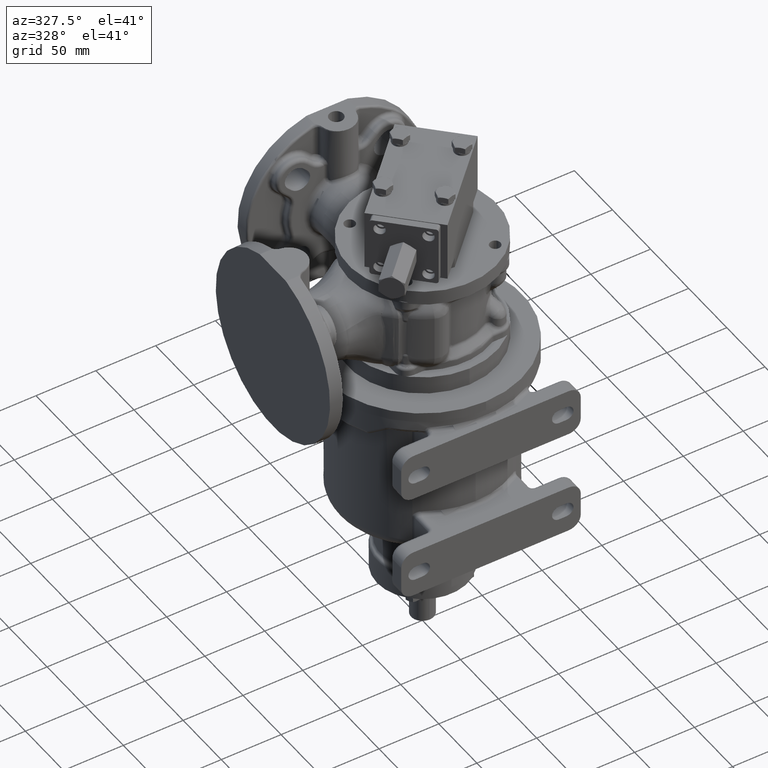
[diagram: clean part render]
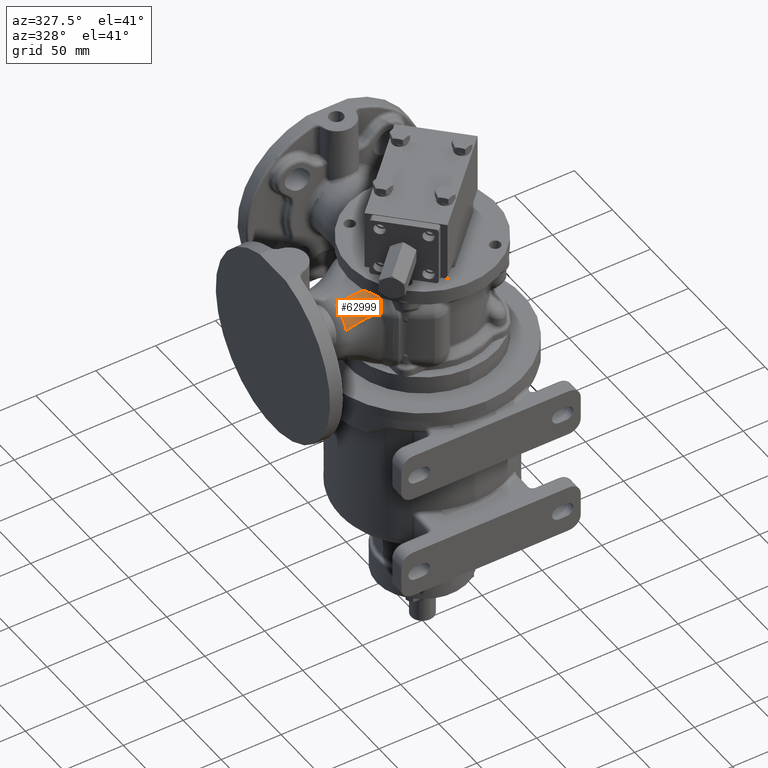
[diagram: same view with one face highlighted and labeled with its STEP entity id]
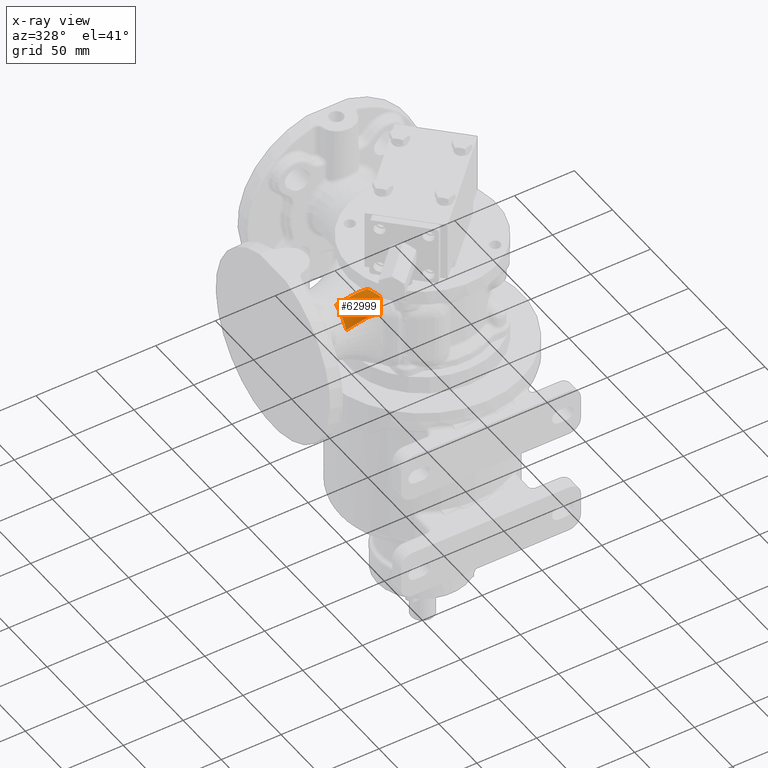
[diagram: x-ray of the same camera — body ghosted, the highlighted face saturated]
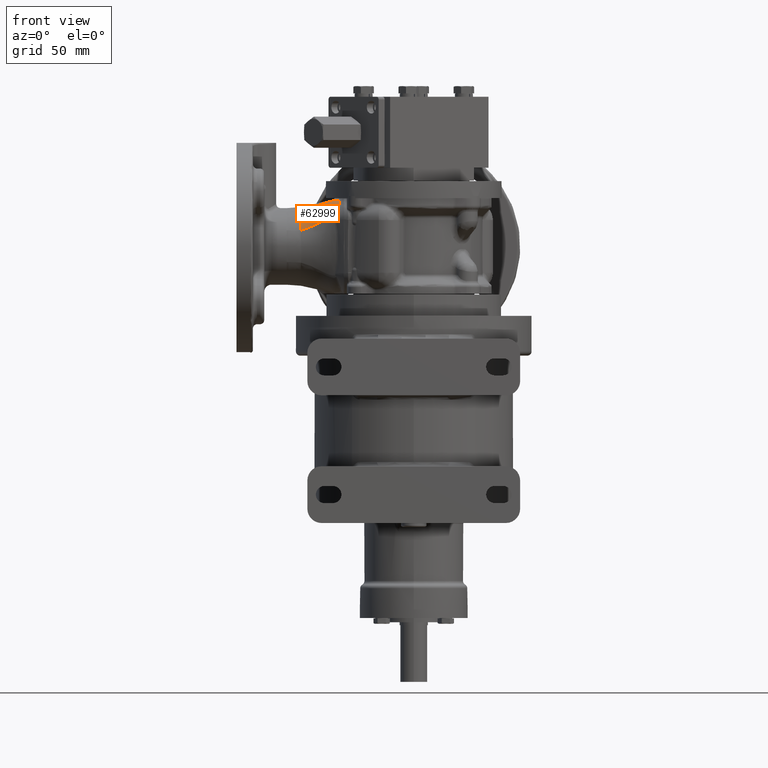
[diagram: same view with one face highlighted and labeled with its STEP entity id]
A machine part, auxiliary view. The second image highlights one B-rep face of the part: STEP entity #62999.
The next image is the same camera in x-ray: the body ghosted, the highlighted face saturated — about 0% of this face is hidden behind the body in this view.
A second angle (front view) of the same face is appended — the face is thin or edge-on in the first view.
In plain terms, the highlighted face is a freeform B-spline surface patch.
Its self-contained STEP definition (entity closure, byte-faithful):
#10596=CARTESIAN_POINT('',(-5.325746376097E1,-2.311639388283E1,
2.071038293684E2));
#10597=CARTESIAN_POINT('',(-5.323671732935E1,-2.319171577981E1,
2.070885164964E2));
#10598=CARTESIAN_POINT('',(-5.319086764615E1,-2.334669136166E1,
2.070571123599E2));
#10599=CARTESIAN_POINT('',(-5.310898388654E1,-2.359119325295E1,
2.070075403483E2));
#10600=CARTESIAN_POINT('',(-5.301229753365E1,-2.385045027753E1,
2.069547066238E2));
#10601=CARTESIAN_POINT('',(-5.289912692468E1,-2.412664268321E1,
2.068977688802E2));
#10602=CARTESIAN_POINT('',(-5.276950150429E1,-2.441697456669E1,
2.068369437120E2));
#10603=CARTESIAN_POINT('',(-5.262412172394E1,-2.471860254568E1,
2.067723938512E2));
#10604=CARTESIAN_POINT('',(-5.246192685157E1,-2.503253316358E1,
2.067034634912E2));
#10605=CARTESIAN_POINT('',(-5.234178161131E1,-2.525038696088E1,
2.066542182453E2));
#10606=CARTESIAN_POINT('',(-5.227863097915E1,-2.536139341759E1,
2.066286889616E2));
#10608=CARTESIAN_POINT('',(-5.227863097915E1,-2.536139341759E1,
2.066286889616E2));
#10609=CARTESIAN_POINT('',(-5.228671840444E1,-2.550823836139E1,
2.065632108250E2));
#10610=CARTESIAN_POINT('',(-5.230443135750E1,-2.579824682163E1,
2.064280883458E2));
#10611=CARTESIAN_POINT('',(-5.233556897885E1,-2.622236310336E1,
2.062130905603E2));
#10612=CARTESIAN_POINT('',(-5.237106275638E1,-2.663377025296E1,
2.059870294283E2));
#10613=CARTESIAN_POINT('',(-5.241077396895E1,-2.703127532213E1,
2.057510169872E2));
#10614=CARTESIAN_POINT('',(-5.245462575864E1,-2.741369520860E1,
2.055062659052E2));
#10615=CARTESIAN_POINT('',(-5.250254063517E1,-2.778034360365E1,
2.052538353800E2));
#10616=CARTESIAN_POINT('',(-5.255463999138E1,-2.813171628284E1,
2.049939683633E2));
#10617=CARTESIAN_POINT('',(-5.259207796720E1,-2.835635340831E1,
2.048157676669E2));
#10618=CARTESIAN_POINT('',(-5.261150958877E1,-2.846618169592E1,
2.047255494246E2));
#10620=CARTESIAN_POINT('',(-4.702987258342E1,-2.023014642431E1,
1.935000000053E2));
#10621=DIRECTION('',(-8.278072621943E-1,5.610125993758E-1,-1.176310901635E-10));
#10622=DIRECTION('',(-5.503504340218E-1,-8.120746067362E-1,1.940341023279E-1));
#10623=AXIS2_PLACEMENT_3D('',#10620,#10621,#10622);
#10625=CARTESIAN_POINT('',(-5.528512010576E1,-3.241125226309E1,
1.964105226419E2));
#10626=CARTESIAN_POINT('',(-5.533929093630E1,-3.241053764516E1,
1.962598952323E2));
#10627=CARTESIAN_POINT('',(-5.544045267951E1,-3.240511343396E1,
1.959712625841E2));
#10628=CARTESIAN_POINT('',(-5.557003396006E1,-3.239061374970E1,
1.955732164248E2));
#10629=CARTESIAN_POINT('',(-5.563939186942E1,-3.237993440718E1,
1.953359935978E2));
#10630=CARTESIAN_POINT('',(-5.567055330982E1,-3.237456759187E1,
1.952241277737E2));
#10632=CARTESIAN_POINT('',(-7.949997278968E1,-2.479075769170E1,
1.864709864998E2));
#10633=CARTESIAN_POINT('',(-7.852262391720E1,-2.482885510638E1,
1.866872462180E2));
#10634=CARTESIAN_POINT('',(-7.687461144027E1,-2.491996691298E1,
1.871423058262E2));
#10635=CARTESIAN_POINT('',(-7.456648886417E1,-2.513613999794E1,
1.879593272335E2));
#10636=CARTESIAN_POINT('',(-7.258591740266E1,-2.539534731689E1,
1.887692498489E2));
#10637=CARTESIAN_POINT('',(-7.063069557405E1,-2.573594984774E1,
1.896586290859E2));
#10638=CARTESIAN_POINT('',(-6.871032233807E1,-2.616545890240E1,
1.905997591032E2));
#10639=CARTESIAN_POINT('',(-6.683338985571E1,-2.668874439856E1,
1.915605636133E2));
#10640=CARTESIAN_POINT('',(-6.500728522972E1,-2.730701547441E1,
1.925041069893E2));
#10641=CARTESIAN_POINT('',(-6.323807332960E1,-2.801753015152E1,
1.933890741294E2));
#10642=CARTESIAN_POINT('',(-6.153047949437E1,-2.881343586660E1,
1.941702883173E2));
#10643=CARTESIAN_POINT('',(-5.988817860924E1,-2.968344642091E1,
1.947982182849E2));
#10644=CARTESIAN_POINT('',(-5.857646880452E1,-3.045713780216E1,
1.951488758791E2));
#10645=CARTESIAN_POINT('',(-5.756243939831E1,-3.109636320158E1,
1.952991295383E2));
#10646=CARTESIAN_POINT('',(-5.681985727818E1,-3.158364853892E1,
1.953404182441E2));
#10647=CARTESIAN_POINT('',(-5.621627401274E1,-3.199402115722E1,
1.953093385820E2));
#10648=CARTESIAN_POINT('',(-5.583673654722E1,-3.225798608284E1,
1.952547310223E2));
#10649=CARTESIAN_POINT('',(-5.569509984297E1,-3.235734816987E1,
1.952287808918E2));
#10650=CARTESIAN_POINT('',(-5.567092861240E1,-3.237432995848E1,
1.952241878151E2));
#10652=CARTESIAN_POINT('',(-7.949997284258E1,-1.114833119102E1,
2.004430607438E2));
#10653=CARTESIAN_POINT('',(-7.869317448523E1,-1.120032587164E1,
2.006017363517E2));
#10654=CARTESIAN_POINT('',(-7.708726299053E1,-1.131499955701E1,
2.009550725992E2));
#10655=CARTESIAN_POINT('',(-7.469259772071E1,-1.152614393942E1,
2.015813636338E2));
#10656=CARTESIAN_POINT('',(-7.231172212359E1,-1.178355701838E1,
2.022869941053E2));
#10657=CARTESIAN_POINT('',(-6.915329276429E1,-1.219858177944E1,
2.033058818026E2));
#10658=CARTESIAN_POINT('',(-6.603178148987E1,-1.273357814860E1,
2.043883114008E2));
#10659=CARTESIAN_POINT('',(-6.293561556984E1,-1.342372691620E1,
2.054321665853E2));
#10660=CARTESIAN_POINT('',(-6.062408428996E1,-1.402952644889E1,
2.061705080164E2));
#10661=CARTESIAN_POINT('',(-5.832189409772E1,-1.473471417328E1,
2.068404608817E2));
#10662=CARTESIAN_POINT('',(-5.678866874628E1,-1.528079280085E1,
2.072281704934E2));
#10663=CARTESIAN_POINT('',(-5.602162958413E1,-1.557565011352E1,
2.074042663383E2));
#10664=CARTESIAN_POINT('',(-5.601698563572E1,-1.557743609079E1,
2.074053318362E2));
#10666=CARTESIAN_POINT('',(-5.601685616090E1,-1.557748564790E1,
2.074053622921E2));
#10667=CARTESIAN_POINT('',(-5.594133770642E1,-1.581648060315E1,
2.074061113070E2));
#10668=CARTESIAN_POINT('',(-5.579278150506E1,-1.627837355350E1,
2.074075061531E2));
#10669=CARTESIAN_POINT('',(-5.557853201506E1,-1.691071096902E1,
2.074111220063E2));
#10670=CARTESIAN_POINT('',(-5.536010165405E1,-1.752086557285E1,
2.074164818251E2));
#10671=CARTESIAN_POINT('',(-5.513019194175E1,-1.812883753693E1,
2.074229122501E2));
#10672=CARTESIAN_POINT('',(-5.487016389472E1,-1.878468990381E1,
2.074290170508E2));
#10673=CARTESIAN_POINT('',(-5.456794749340E1,-1.952019209083E1,
2.074298647770E2));
#10674=CARTESIAN_POINT('',(-5.427892315292E1,-2.022073200290E1,
2.074175714069E2));
#10675=CARTESIAN_POINT('',(-5.403066333373E1,-2.083973042623E1,
2.073907916222E2));
#10676=CARTESIAN_POINT('',(-5.382359559783E1,-2.138089117418E1,
2.073520603971E2));
#10677=CARTESIAN_POINT('',(-5.364830603384E1,-2.186656452862E1,
2.073031988890E2));
#10678=CARTESIAN_POINT('',(-5.349837386129E1,-2.231092549994E1,
2.072454356147E2));
#10679=CARTESIAN_POINT('',(-5.336905628743E1,-2.272373329261E1,
2.071797524153E2));
#10680=CARTESIAN_POINT('',(-5.329287609804E1,-2.298795081177E1,
2.071299304661E2));
#10681=CARTESIAN_POINT('',(-5.325746376097E1,-2.311639388283E1,
2.071038293684E2));
#10958=CARTESIAN_POINT('',(-5.567055330982E1,-3.237456759187E1,
1.952241277737E2));
#11619=CARTESIAN_POINT('',(-7.949997280584E1,-1.114833972591E1,
2.004430558045E2));
#11638=CARTESIAN_POINT('',(-7.949997280584E1,-1.114833972591E1,
2.004430558045E2));
#11639=CARTESIAN_POINT('',(-7.949997280584E1,-1.133859897928E1,
2.003582662446E2));
#11640=CARTESIAN_POINT('',(-7.949997266651E1,-1.171714076899E1,
2.001843186825E2));
#11641=CARTESIAN_POINT('',(-7.949997273541E1,-1.246606357894E1,
1.998190168962E2));
#11642=CARTESIAN_POINT('',(-7.949997270254E1,-1.338624862841E1,
1.993298959066E2));
#11643=CARTESIAN_POINT('',(-7.949997271337E1,-1.446161941657E1,
1.986919044425E2));
#11644=CARTESIAN_POINT('',(-7.949997270897E1,-1.585343818269E1,
1.977747228941E2));
#11645=CARTESIAN_POINT('',(-7.949997270925E1,-1.750900044375E1,
1.965064640547E2));
#11646=CARTESIAN_POINT('',(-7.949997270787E1,-1.933915825331E1,
1.947989065786E2));
#11647=CARTESIAN_POINT('',(-7.949997270846E1,-2.099188413605E1,
1.929190737688E2));
#11648=CARTESIAN_POINT('',(-7.949997270717E1,-2.245501388453E1,
1.908888965135E2));
#11649=CARTESIAN_POINT('',(-7.949997271369E1,-2.351526261691E1,
1.890935227510E2));
#11650=CARTESIAN_POINT('',(-7.949997270091E1,-2.427297650339E1,
1.876085158625E2));
#11651=CARTESIAN_POINT('',(-7.949997272594E1,-2.462288324583E1,
1.868522530985E2));
#11652=CARTESIAN_POINT('',(-7.949997272594E1,-2.479072197012E1,
1.864709638049E2));
#14982=CARTESIAN_POINT('',(-5.261150958877E1,-2.846618169592E1,
2.047255494246E2));
#33277=VERTEX_POINT('',#10958);
#33279=VERTEX_POINT('',#10625);
#33281=VERTEX_POINT('',#14982);
#33349=CARTESIAN_POINT('',(-5.227863069172E1,-2.536139209833E1,
2.066286893114E2));
#33350=VERTEX_POINT('',#33349);
#33351=VERTEX_POINT('',#10596);
#33353=VERTEX_POINT('',#10666);
#33972=VERTEX_POINT('',#11619);
#33977=VERTEX_POINT('',#11652);
#62662=CARTESIAN_POINT('',(-8.450000019261E1,-1.070395705042E1,
1.997876059049E2));
#62663=CARTESIAN_POINT('',(-8.400044793749E1,-1.072565441371E1,
1.998362668725E2));
#62664=CARTESIAN_POINT('',(-8.300312267817E1,-1.077091795108E1,
1.999458627726E2));
#62665=CARTESIAN_POINT('',(-8.101558721623E1,-1.086891408581E1,
2.002141259495E2));
#62666=CARTESIAN_POINT('',(-7.806103917282E1,-1.104659686281E1,
2.007588509353E2));
#62667=CARTESIAN_POINT('',(-7.418033139444E1,-1.136455308867E1,
2.017398662452E2));
#62668=CARTESIAN_POINT('',(-6.989067413268E1,-1.186563430870E1,
2.030915067409E2));
#62669=CARTESIAN_POINT('',(-6.566789038255E1,-1.258101523962E1,
2.045595371411E2));
#62670=CARTESIAN_POINT('',(-6.194792343141E1,-1.343229514559E1,
2.058097328904E2));
#62671=CARTESIAN_POINT('',(-5.871080877666E1,-1.437726952037E1,
2.067740107679E2));
#62672=CARTESIAN_POINT('',(-5.594840372207E1,-1.535466423813E1,
2.074648651194E2));
#62673=CARTESIAN_POINT('',(-5.388560566015E1,-1.620010591439E1,
2.078828708551E2));
#62674=CARTESIAN_POINT('',(-5.206233085283E1,-1.704916752478E1,
2.081690971493E2));
#62675=CARTESIAN_POINT('',(-5.047760433088E1,-1.787147232819E1,
2.083461474752E2));
#62676=CARTESIAN_POINT('',(-4.924106820822E1,-1.857247385257E1,
2.084410854549E2));
#62677=CARTESIAN_POINT('',(-4.828754769852E1,-1.914734473797E1,
2.084820957586E2));
#62678=CARTESIAN_POINT('',(-4.756235490982E1,-1.961067862996E1,
2.085027003977E2));
#62679=CARTESIAN_POINT('',(-4.706176481448E1,-1.994360726490E1,
2.084986891650E2));
#62680=CARTESIAN_POINT('',(-4.678289713522E1,-2.013320333576E1,
2.084982012463E2));
#62681=CARTESIAN_POINT('',(-4.661445400127E1,-2.024923218109E1,
2.084968190952E2));
#62682=CARTESIAN_POINT('',(-8.450000004062E1,-1.085536451476E1,
1.997222222676E2));
#62683=CARTESIAN_POINT('',(-8.400163226807E1,-1.087659292974E1,
1.997703017778E2));
#62684=CARTESIAN_POINT('',(-8.300659871007E1,-1.092097250046E1,
1.998789379565E2));
#62685=CARTESIAN_POINT('',(-8.102334016550E1,-1.101742668826E1,
2.001461446068E2));
#62686=CARTESIAN_POINT('',(-7.807476171755E1,-1.119397925623E1,
2.006916706132E2));
#62687=CARTESIAN_POINT('',(-7.420173689981E1,-1.151207158583E1,
2.016775471866E2));
#62688=CARTESIAN_POINT('',(-6.992100590816E1,-1.201422050260E1,
2.030365793246E2));
#62689=CARTESIAN_POINT('',(-6.570714700568E1,-1.273091905841E1,
2.045123507900E2));
#62690=CARTESIAN_POINT('',(-6.199588678251E1,-1.358386994093E1,
2.057688791954E2));
#62691=CARTESIAN_POINT('',(-5.876773080686E1,-1.453039780502E1,
2.067396976738E2));
#62692=CARTESIAN_POINT('',(-5.601425960321E1,-1.550881831592E1,
2.074358445172E2));
#62693=CARTESIAN_POINT('',(-5.395893446205E1,-1.635460328394E1,
2.078599829593E2));
#62694=CARTESIAN_POINT('',(-5.214278391135E1,-1.720341793304E1,
2.081496432217E2));
#62695=CARTESIAN_POINT('',(-5.056448364222E1,-1.802495916323E1,
2.083343265127E2));
#62696=CARTESIAN_POINT('',(-4.933301583642E1,-1.872495800303E1,
2.084302655714E2));
#62697=CARTESIAN_POINT('',(-4.838337205052E1,-1.929879633896E1,
2.084807354133E2));
#62698=CARTESIAN_POINT('',(-4.766108667446E1,-1.976117060872E1,
2.084965329849E2));
#62699=CARTESIAN_POINT('',(-4.716247822514E1,-2.009335224966E1,
2.085021557092E2));
#62700=CARTESIAN_POINT('',(-4.688470165880E1,-2.028250865724E1,
2.085012426084E2));
#62701=CARTESIAN_POINT('',(-4.671691399478E1,-2.039826226606E1,
2.084996495338E2));
#62702=CARTESIAN_POINT('',(-8.449999973274E1,-1.112062144184E1,
1.996052632227E2));
#62703=CARTESIAN_POINT('',(-8.400372095955E1,-1.114103852169E1,
1.996523389942E2));
#62704=CARTESIAN_POINT('',(-8.301274618185E1,-1.118390589213E1,
1.997593270173E2));
#62705=CARTESIAN_POINT('',(-8.103713009402E1,-1.127777599794E1,
2.000246133672E2));
#62706=CARTESIAN_POINT('',(-7.809911436466E1,-1.145226912917E1,
2.005715271159E2));
#62707=CARTESIAN_POINT('',(-7.423963375669E1,-1.177050209940E1,
2.015654259049E2));
#62708=CARTESIAN_POINT('',(-6.997443881696E1,-1.227444079828E1,
2.029374485393E2));
#62709=CARTESIAN_POINT('',(-6.577626200871E1,-1.299361152263E1,
2.044265462494E2));
#62710=CARTESIAN_POINT('',(-6.208036452509E1,-1.384963638942E1,
2.056950076455E2));
#62711=CARTESIAN_POINT('',(-5.886799890190E1,-1.479900747413E1,
2.066770119871E2));
#62712=CARTESIAN_POINT('',(-5.613021411917E1,-1.577931125491E1,
2.073838159657E2));
#62713=CARTESIAN_POINT('',(-5.408797934606E1,-1.662577242726E1,
2.078171584436E2));
#62714=CARTESIAN_POINT('',(-5.228427870763E1,-1.747422200096E1,
2.081159675808E2));
#62715=CARTESIAN_POINT('',(-5.071720806899E1,-1.829449873729E1,
2.083096183106E2));
#62716=CARTESIAN_POINT('',(-4.949459975651E1,-1.899279016671E1,
2.084137565511E2));
#62717=CARTESIAN_POINT('',(-4.855177211996E1,-1.956489434124E1,
2.084691989153E2));
#62718=CARTESIAN_POINT('',(-4.783459723578E1,-2.002561590446E1,
2.084924999520E2));
#62719=CARTESIAN_POINT('',(-4.733945874126E1,-2.035649460008E1,
2.085016664771E2));
#62720=CARTESIAN_POINT('',(-4.706359664895E1,-2.054487666195E1,
2.085015831896E2));
#62721=CARTESIAN_POINT('',(-4.689695906303E1,-2.066014443235E1,
2.085006156159E2));
#62722=CARTESIAN_POINT('',(-8.449999923473E1,-1.161162250254E1,
1.993808483285E2));
#62723=CARTESIAN_POINT('',(-8.400763313076E1,-1.163057266014E1,
1.994261144284E2));
#62724=CARTESIAN_POINT('',(-8.302432747171E1,-1.167077295461E1,
1.995300912064E2));
#62725=CARTESIAN_POINT('',(-8.106339392833E1,-1.176030824447E1,
1.997918199743E2));
#62726=CARTESIAN_POINT('',(-7.814521271021E1,-1.193061640286E1,
2.003408390289E2));
#62727=CARTESIAN_POINT('',(-7.431111749507E1,-1.224883520143E1,
2.013485583929E2));
#62728=CARTESIAN_POINT('',(-7.007429194106E1,-1.275577069665E1,
2.027438914606E2));
#62729=CARTESIAN_POINT('',(-6.590531528486E1,-1.348009562798E1,
2.042580405995E2));
#62730=CARTESIAN_POINT('',(-6.223821427287E1,-1.434228664443E1,
2.055499037713E2));
#62731=CARTESIAN_POINT('',(-5.905539900158E1,-1.529732404939E1,
2.065537180851E2));
#62732=CARTESIAN_POINT('',(-5.634677170007E1,-1.628139843197E1,
2.072818515135E2));
#62733=CARTESIAN_POINT('',(-5.432875740592E1,-1.712934806956E1,
2.077325847525E2));
#62734=CARTESIAN_POINT('',(-5.254801936686E1,-1.797737317679E1,
2.080496736167E2));
#62735=CARTESIAN_POINT('',(-5.100158805339E1,-1.879549435539E1,
2.082598302789E2));
#62736=CARTESIAN_POINT('',(-4.979533831688E1,-1.949082914055E1,
2.083802265915E2));
#62737=CARTESIAN_POINT('',(-4.886521095896E1,-2.005996069064E1,
2.084495538593E2));
#62738=CARTESIAN_POINT('',(-4.815755129293E1,-2.051775687317E1,
2.084829691250E2));
#62739=CARTESIAN_POINT('',(-4.766885593267E1,-2.084625113192E1,
2.084875946952E2));
#62740=CARTESIAN_POINT('',(-4.739654169245E1,-2.103318476162E1,
2.084846127415E2));
#62741=CARTESIAN_POINT('',(-4.723203265596E1,-2.114753507732E1,
2.084806250912E2));
#62742=CARTESIAN_POINT('',(-8.449999919907E1,-1.232170758343E1,
1.990345972488E2));
#62743=CARTESIAN_POINT('',(-8.401341415483E1,-1.233863186418E1,
1.990773727272E2));
#62744=CARTESIAN_POINT('',(-8.304154225192E1,-1.237521087468E1,
1.991771559012E2));
#62745=CARTESIAN_POINT('',(-8.110296267854E1,-1.245923934373E1,
1.994336633694E2));
#62746=CARTESIAN_POINT('',(-7.821478706980E1,-1.262339837881E1,
1.999844166150E2));
#62747=CARTESIAN_POINT('',(-7.441787742904E1,-1.294034760184E1,
2.010095445372E2));
#62748=CARTESIAN_POINT('',(-7.022146360624E1,-1.345122206857E1,
2.024363053647E2));
#62749=CARTESIAN_POINT('',(-6.609497263185E1,-1.418421879714E1,
2.039881620038E2));
#62750=CARTESIAN_POINT('',(-6.247055587668E1,-1.505674791940E1,
2.053166397023E2));
#62751=CARTESIAN_POINT('',(-5.933126154683E1,-1.602100484331E1,
2.063558817971E2));
#62752=CARTESIAN_POINT('',(-5.666513500108E1,-1.701136324047E1,
2.071175894684E2));
#62753=CARTESIAN_POINT('',(-5.468209936991E1,-1.786210729007E1,
2.075962448787E2));
#62754=CARTESIAN_POINT('',(-5.293427690912E1,-1.871012103088E1,
2.079398144234E2));
#62755=CARTESIAN_POINT('',(-5.141749183949E1,-1.952580610371E1,
2.081750561923E2));
#62756=CARTESIAN_POINT('',(-5.023494252279E1,-2.021754810451E1,
2.083113543780E2));
#62757=CARTESIAN_POINT('',(-4.932317793480E1,-2.078276941058E1,
2.083848702776E2));
#62758=CARTESIAN_POINT('',(-4.862931805221E1,-2.123651416084E1,
2.084118362813E2));
#62759=CARTESIAN_POINT('',(-4.814997769274E1,-2.156157741572E1,
2.084193063248E2));
#62760=CARTESIAN_POINT('',(-4.788281570141E1,-2.174639489412E1,
2.084199947735E2));
#62761=CARTESIAN_POINT('',(-4.772139910013E1,-2.185939408266E1,
2.084192067458E2));
#62762=CARTESIAN_POINT('',(-8.450000026583E1,-1.323961787505E1,
1.985447197123E2));
#62763=CARTESIAN_POINT('',(-8.402109694087E1,-1.325408616711E1,
1.985844925657E2));
#62764=CARTESIAN_POINT('',(-8.306445378227E1,-1.328622648928E1,
1.986791272696E2));
#62765=CARTESIAN_POINT('',(-8.115582384840E1,-1.336333944002E1,
1.989287383130E2));
#62766=CARTESIAN_POINT('',(-7.830927766142E1,-1.352073384069E1,
1.994794093774E2));
#62767=CARTESIAN_POINT('',(-7.456144727033E1,-1.383428626348E1,
2.005223255187E2));
#62768=CARTESIAN_POINT('',(-7.041711413382E1,-1.434997636786E1,
2.019860451277E2));
#62769=CARTESIAN_POINT('',(-6.634597552941E1,-1.509589583145E1,
2.035881070347E2));
#62770=CARTESIAN_POINT('',(-6.277832213220E1,-1.598419017964E1,
2.049686669833E2));
#62771=CARTESIAN_POINT('',(-5.969642933798E1,-1.696225496047E1,
2.060585558164E2));
#62772=CARTESIAN_POINT('',(-5.708563024796E1,-1.796228401E1,2.068668122928E2));
#62773=CARTESIAN_POINT('',(-5.514755936086E1,-1.881771723666E1,
2.073807679841E2));
#62774=CARTESIAN_POINT('',(-5.344184424992E1,-1.966674202197E1,
2.077538541037E2));
#62775=CARTESIAN_POINT('',(-5.196313786077E1,-2.048031605769E1,
2.080065092581E2));
#62776=CARTESIAN_POINT('',(-5.081090270048E1,-2.116787902398E1,
2.081471366236E2));
#62777=CARTESIAN_POINT('',(-4.992259709975E1,-2.172812823007E1,
2.082204516913E2));
#62778=CARTESIAN_POINT('',(-4.924645520527E1,-2.217656238031E1,
2.082492935647E2));
#62779=CARTESIAN_POINT('',(-4.877923168840E1,-2.249713278752E1,
2.082532526510E2));
#62780=CARTESIAN_POINT('',(-4.851878203116E1,-2.267918269124E1,
2.082503280644E2));
#62781=CARTESIAN_POINT('',(-4.836140685780E1,-2.279041484936E1,
2.082466813104E2));
#62782=CARTESIAN_POINT('',(-8.450000069918E1,-1.442606175052E1,
1.978483572349E2));
#62783=CARTESIAN_POINT('',(-8.403126270231E1,-1.443753348601E1,
1.978845106059E2));
#62784=CARTESIAN_POINT('',(-8.309477269887E1,-1.446423366984E1,
1.979727803982E2));
#62785=CARTESIAN_POINT('',(-8.122573724844E1,-1.453265322145E1,
1.982131783417E2));
#62786=CARTESIAN_POINT('',(-7.843536185668E1,-1.468203933285E1,
1.987609065517E2));
#62787=CARTESIAN_POINT('',(-7.475335150605E1,-1.499111648666E1,
1.998208068375E2));
#62788=CARTESIAN_POINT('',(-7.067701837270E1,-1.551261697321E1,
2.013271845904E2));
#62789=CARTESIAN_POINT('',(-6.667837708485E1,-1.627716193896E1,
2.029942648578E2));
#62790=CARTESIAN_POINT('',(-6.318544413524E1,-1.718834436466E1,
2.044452838423E2));
#62791=CARTESIAN_POINT('',(-6.017864322766E1,-1.818665044820E1,
2.056026109464E2));
#62792=CARTESIAN_POINT('',(-5.763933316474E1,-1.920094794450E1,
2.064674897617E2));
#62793=CARTESIAN_POINT('',(-5.575880929476E1,-2.006347719427E1,
2.070188184225E2));
#62794=CARTESIAN_POINT('',(-5.410673902794E1,-2.091443526791E1,
2.074145068732E2));
#62795=CARTESIAN_POINT('',(-5.267624811065E1,-2.172515174174E1,
2.076747437488E2));
#62796=CARTESIAN_POINT('',(-5.156228265679E1,-2.240664421421E1,
2.078142227973E2));
#62797=CARTESIAN_POINT('',(-5.070366616504E1,-2.295976556397E1,
2.078837497636E2));
#62798=CARTESIAN_POINT('',(-5.005018186770E1,-2.340086821538E1,
2.079076781991E2));
#62799=CARTESIAN_POINT('',(-4.959863737510E1,-2.371543321897E1,
2.079115049166E2));
#62800=CARTESIAN_POINT('',(-4.934693599634E1,-2.389384344197E1,
2.079097359161E2));
#62801=CARTESIAN_POINT('',(-4.919484970983E1,-2.400276879432E1,
2.079072371642E2));
#62802=CARTESIAN_POINT('',(-8.449999942842E1,-1.588242880336E1,
1.968760506868E2));
#62803=CARTESIAN_POINT('',(-8.404404503451E1,-1.589048460927E1,
1.969081143350E2));
#62804=CARTESIAN_POINT('',(-8.313285271896E1,-1.591089167472E1,
1.969889927992E2));
#62805=CARTESIAN_POINT('',(-8.131333291148E1,-1.596888636929E1,
1.972177513418E2));
#62806=CARTESIAN_POINT('',(-7.859357079858E1,-1.610858760071E1,
1.977577258443E2));
#62807=CARTESIAN_POINT('',(-7.499553520297E1,-1.641262544041E1,
1.988290569428E2));
#62808=CARTESIAN_POINT('',(-7.100471796671E1,-1.694101963916E1,
2.003780586119E2));
#62809=CARTESIAN_POINT('',(-6.709638243360E1,-1.772999919158E1,
2.021196087864E2));
#62810=CARTESIAN_POINT('',(-6.369602535530E1,-1.867201072387E1,
2.036541074158E2));
#62811=CARTESIAN_POINT('',(-6.078138158760E1,-1.969785645217E1,
2.048863801508E2));
#62812=CARTESIAN_POINT('',(-5.832876551062E1,-2.073132829277E1,
2.058053743388E2));
#62813=CARTESIAN_POINT('',(-5.651740119876E1,-2.160301146112E1,
2.063845187301E2));
#62814=CARTESIAN_POINT('',(-5.492937842820E1,-2.245563476528E1,
2.067905770501E2));
#62815=CARTESIAN_POINT('',(-5.355633607670E1,-2.326134507415E1,
2.070498232972E2));
#62816=CARTESIAN_POINT('',(-5.248821114255E1,-2.393397232147E1,
2.071842968590E2));
#62817=CARTESIAN_POINT('',(-5.166549658138E1,-2.447731914533E1,
2.072490930517E2));
#62818=CARTESIAN_POINT('',(-5.103974556597E1,-2.490881438025E1,
2.072698694679E2));
#62819=CARTESIAN_POINT('',(-5.060756314112E1,-2.521567408576E1,
2.072690683342E2));
#62820=CARTESIAN_POINT('',(-5.036671695968E1,-2.538945327030E1,
2.072637986234E2));
#62821=CARTESIAN_POINT('',(-5.022121259010E1,-2.549545757103E1,
2.072588506983E2));
#62822=CARTESIAN_POINT('',(-8.449999924402E1,-1.746683262764E1,
1.956512320880E2));
#62823=CARTESIAN_POINT('',(-8.405816351806E1,-1.747149555495E1,
1.956791072045E2));
#62824=CARTESIAN_POINT('',(-8.317481648335E1,-1.748552670968E1,
1.957521705170E2));
#62825=CARTESIAN_POINT('',(-8.140942240396E1,-1.753241778803E1,
1.959675491838E2));
#62826=CARTESIAN_POINT('',(-7.876598319694E1,-1.766009408781E1,
1.964950102696E2));
#62827=CARTESIAN_POINT('',(-7.525984734650E1,-1.795722980592E1,
1.975674761885E2));
#62828=CARTESIAN_POINT('',(-7.136341589330E1,-1.849143837277E1,
1.991470843236E2));
#62829=CARTESIAN_POINT('',(-6.755331817992E1,-1.930582248706E1,
2.009530894064E2));
#62830=CARTESIAN_POINT('',(-6.425241585014E1,-2.028165216234E1,
2.025607866594E2));
#62831=CARTESIAN_POINT('',(-6.143589006458E1,-2.133792024406E1,
2.038528510408E2));
#62832=CARTESIAN_POINT('',(-5.907509601535E1,-2.239190375279E1,
2.048083574250E2));
#62833=CARTESIAN_POINT('',(-5.733684711927E1,-2.327240540123E1,
2.054018702497E2));
#62834=CARTESIAN_POINT('',(-5.581672817738E1,-2.412521663170E1,
2.058096821315E2));
#62835=CARTESIAN_POINT('',(-5.450510515010E1,-2.492381487246E1,
2.060635340929E2));
#62836=CARTESIAN_POINT('',(-5.348650158188E1,-2.558544410257E1,
2.061901223080E2));
#62837=CARTESIAN_POINT('',(-5.270285502457E1,-2.611715624419E1,
2.062470213501E2));
#62838=CARTESIAN_POINT('',(-5.210747142749E1,-2.653743464295E1,
2.062603338051E2));
#62839=CARTESIAN_POINT('',(-5.169657575820E1,-2.683538883862E1,
2.062557063743E2));
#62840=CARTESIAN_POINT('',(-5.146769009219E1,-2.700384230068E1,
2.062488386897E2));
#62841=CARTESIAN_POINT('',(-5.132944756389E1,-2.710649597916E1,
2.062431142209E2));
#62842=CARTESIAN_POINT('',(-8.450000042926E1,-1.913294990127E1,
1.941327912750E2));
#62843=CARTESIAN_POINT('',(-8.407290939788E1,-1.913445324017E1,
1.941562260334E2));
#62844=CARTESIAN_POINT('',(-8.321849900714E1,-1.914231740931E1,
1.942207679647E2));
#62845=CARTESIAN_POINT('',(-8.150875927305E1,-1.917745840499E1,
1.944205430825E2));
#62846=CARTESIAN_POINT('',(-7.894251343285E1,-1.929007769283E1,
1.949283627457E2));
#62847=CARTESIAN_POINT('',(-7.552814351698E1,-1.957314825614E1,
1.959868757749E2));
#62848=CARTESIAN_POINT('',(-7.172665359304E1,-2.010525564028E1,
1.975740634367E2));
#62849=CARTESIAN_POINT('',(-6.801549336385E1,-2.093879998266E1,
1.994166439819E2));
#62850=CARTESIAN_POINT('',(-6.481454233777E1,-2.194491636896E1,
2.010706555624E2));
#62851=CARTESIAN_POINT('',(-6.209692496736E1,-2.302936689715E1,
2.023998601165E2));
#62852=CARTESIAN_POINT('',(-5.982927422582E1,-2.410167953479E1,
2.033766968701E2));
#62853=CARTESIAN_POINT('',(-5.816578942498E1,-2.498888614811E1,
2.039768510900E2));
#62854=CARTESIAN_POINT('',(-5.671577899988E1,-2.583918776175E1,
2.043817846278E2));
#62855=CARTESIAN_POINT('',(-5.546811595674E1,-2.662777384183E1,
2.046266644747E2));
#62856=CARTESIAN_POINT('',(-5.450141606206E1,-2.727581516117E1,
2.047423501304E2));
#62857=CARTESIAN_POINT('',(-5.375891899189E1,-2.779360939381E1,
2.047888707675E2));
#62858=CARTESIAN_POINT('',(-5.319566829213E1,-2.820074206658E1,
2.047931780783E2));
#62859=CARTESIAN_POINT('',(-5.280736687429E1,-2.848834081213E1,
2.047804006862E2));
#62860=CARTESIAN_POINT('',(-5.259119866789E1,-2.865062122968E1,
2.047683035129E2));
#62861=CARTESIAN_POINT('',(-5.246068547996E1,-2.874939857545E1,
2.047591720383E2));
#62862=CARTESIAN_POINT('',(-8.449999981150E1,-2.081986863065E1,
1.922819490328E2));
#62863=CARTESIAN_POINT('',(-8.408712230528E1,-2.081879665288E1,
1.923003063753E2));
#62864=CARTESIAN_POINT('',(-8.326043842434E1,-2.082129603252E1,
1.923546895084E2));
#62865=CARTESIAN_POINT('',(-8.160336261393E1,-2.084489331264E1,
1.925341230129E2));
#62866=CARTESIAN_POINT('',(-7.910772627127E1,-2.093702463912E1,
1.930134315298E2));
#62867=CARTESIAN_POINT('',(-7.577468779530E1,-2.119264727431E1,
1.940388969143E2));
#62868=CARTESIAN_POINT('',(-7.205693773812E1,-2.170446329788E1,
1.956009870278E2));
#62869=CARTESIAN_POINT('',(-6.843449904154E1,-2.253889564729E1,
1.974399572156E2));
#62870=CARTESIAN_POINT('',(-6.532537414920E1,-2.356075620710E1,
1.991056023110E2));
#62871=CARTESIAN_POINT('',(-6.270064870448E1,-2.466253566894E1,
2.004493290046E2));
#62872=CARTESIAN_POINT('',(-6.052214535653E1,-2.574517670609E1,
2.014351802419E2));
#62873=CARTESIAN_POINT('',(-5.893121636388E1,-2.663348372691E1,
2.020367568985E2));
#62874=CARTESIAN_POINT('',(-5.755000548085E1,-2.747649784935E1,
2.024363129997E2));
#62875=CARTESIAN_POINT('',(-5.636571030972E1,-2.825030924365E1,
2.026692853965E2));
#62876=CARTESIAN_POINT('',(-5.545086214022E1,-2.888033196293E1,
2.027697392740E2));
#62877=CARTESIAN_POINT('',(-5.474968471287E1,-2.938052376973E1,
2.028009807025E2));
#62878=CARTESIAN_POINT('',(-5.421885839600E1,-2.977150480468E1,
2.027906913500E2));
#62879=CARTESIAN_POINT('',(-5.385343818227E1,-3.004661989832E1,
2.027672972020E2));
#62880=CARTESIAN_POINT('',(-5.365017334677E1,-3.020152839863E1,
2.027491696581E2));
#62881=CARTESIAN_POINT('',(-5.352751154178E1,-3.029569941017E1,
2.027363511692E2));
#62882=CARTESIAN_POINT('',(-8.450000008946E1,-2.235199509844E1,
1.902517364392E2));
#62883=CARTESIAN_POINT('',(-8.409875039890E1,-2.234951578929E1,
1.902644315682E2));
#62884=CARTESIAN_POINT('',(-8.329453227493E1,-2.234837969234E1,
1.903076410671E2));
#62885=CARTESIAN_POINT('',(-8.167920584547E1,-2.236134382759E1,
1.904653576336E2));
#62886=CARTESIAN_POINT('',(-7.923782278202E1,-2.243041182562E1,
1.909109550884E2));
#62887=CARTESIAN_POINT('',(-7.596452236139E1,-2.264717945687E1,
1.918905348044E2));
#62888=CARTESIAN_POINT('',(-7.230720034135E1,-2.311975343780E1,
1.934015920368E2));
#62889=CARTESIAN_POINT('',(-6.875003862997E1,-2.392959599254E1,
1.952004365697E2));
#62890=CARTESIAN_POINT('',(-6.571105070180E1,-2.494123034546E1,
1.968457838513E2));
#62891=CARTESIAN_POINT('',(-6.316006204269E1,-2.603843693088E1,
1.981824780556E2));
#62892=CARTESIAN_POINT('',(-6.105437778223E1,-2.711495269878E1,
1.991667193453E2));
#62893=CARTESIAN_POINT('',(-5.952406643111E1,-2.799413872274E1,
1.997661723512E2));
#62894=CARTESIAN_POINT('',(-5.820150129548E1,-2.882190542890E1,
2.001579990346E2));
#62895=CARTESIAN_POINT('',(-5.707207035538E1,-2.957516606826E1,
2.003768927986E2));
#62896=CARTESIAN_POINT('',(-5.620261824231E1,-3.018339306891E1,
2.004601201229E2));
#62897=CARTESIAN_POINT('',(-5.553790536897E1,-3.066306197066E1,
2.004738530289E2));
#62898=CARTESIAN_POINT('',(-5.503587853524E1,-3.103557742528E1,
2.004473229599E2));
#62899=CARTESIAN_POINT('',(-5.469085787403E1,-3.129647143059E1,
2.004105814633E2));
#62900=CARTESIAN_POINT('',(-5.449912186464E1,-3.144299079880E1,
2.003843079092E2));
#62901=CARTESIAN_POINT('',(-5.438348379408E1,-3.153192466171E1,
2.003663096582E2));
#62902=CARTESIAN_POINT('',(-8.449999997609E1,-2.342302958911E1,
1.885134401706E2));
#62903=CARTESIAN_POINT('',(-8.410536400052E1,-2.342064238101E1,
1.885211222247E2));
#62904=CARTESIAN_POINT('',(-8.331386123686E1,-2.341886723397E1,
1.885544422783E2));
#62905=CARTESIAN_POINT('',(-8.172196128990E1,-2.342741253035E1,
1.886928479100E2));
#62906=CARTESIAN_POINT('',(-7.930935491156E1,-2.347869405386E1,
1.891146006857E2));
#62907=CARTESIAN_POINT('',(-7.606781989642E1,-2.366395024513E1,
1.900565685157E2));
#62908=CARTESIAN_POINT('',(-7.244221804038E1,-2.409777103208E1,
1.915148199153E2));
#62909=CARTESIAN_POINT('',(-6.891711825309E1,-2.486666426482E1,
1.932658920515E2));
#62910=CARTESIAN_POINT('',(-6.591308117156E1,-2.584245195698E1,
1.948768720119E2));
#62911=CARTESIAN_POINT('',(-6.340030980466E1,-2.690806798698E1,
1.961919046878E2));
#62912=CARTESIAN_POINT('',(-6.133416450943E1,-2.795657864836E1,
1.971630925845E2));
#62913=CARTESIAN_POINT('',(-5.983796625188E1,-2.881309235235E1,
1.977556072716E2));
#62914=CARTESIAN_POINT('',(-5.854952943058E1,-2.961837132929E1,
1.981423314056E2));
#62915=CARTESIAN_POINT('',(-5.745319155415E1,-3.034749737165E1,
1.983523658745E2));
#62916=CARTESIAN_POINT('',(-5.661205777646E1,-3.093229972763E1,
1.984222235238E2));
#62917=CARTESIAN_POINT('',(-5.597058790344E1,-3.139116895810E1,
1.984213719274E2));
#62918=CARTESIAN_POINT('',(-5.548729106638E1,-3.174568132218E1,
1.983796814656E2));
#62919=CARTESIAN_POINT('',(-5.515572340957E1,-3.199310144371E1,
1.983308489792E2));
#62920=CARTESIAN_POINT('',(-5.497164437865E1,-3.213178733178E1,
1.982973522705E2));
#62921=CARTESIAN_POINT('',(-5.486069137398E1,-3.221586928521E1,
1.982748147495E2));
#62922=CARTESIAN_POINT('',(-8.450000000181E1,-2.413571824875E1,
1.871471608659E2));
#62923=CARTESIAN_POINT('',(-8.410863640609E1,-2.413424763457E1,
1.871507891437E2));
#62924=CARTESIAN_POINT('',(-8.332335831384E1,-2.413346822866E1,
1.871769861333E2));
#62925=CARTESIAN_POINT('',(-8.174254803998E1,-2.414037891265E1,
1.873053204858E2));
#62926=CARTESIAN_POINT('',(-7.934524367358E1,-2.418599473403E1,
1.877125957854E2));
#62927=CARTESIAN_POINT('',(-7.612316801578E1,-2.435884715540E1,
1.886236345975E2));
#62928=CARTESIAN_POINT('',(-7.251510747379E1,-2.476535836917E1,
1.900470928288E2));
#62929=CARTESIAN_POINT('',(-6.900480493703E1,-2.549301679613E1,
1.917635013570E2));
#62930=CARTESIAN_POINT('',(-6.601342439767E1,-2.642307759528E1,
1.933497108092E2));
#62931=CARTESIAN_POINT('',(-6.351435737132E1,-2.744408165104E1,
1.946446844857E2));
#62932=CARTESIAN_POINT('',(-6.146344045908E1,-2.845133988524E1,
1.955997202979E2));
#62933=CARTESIAN_POINT('',(-5.998174273312E1,-2.927544813078E1,
1.961794963842E2));
#62934=CARTESIAN_POINT('',(-5.870932080578E1,-3.005025450896E1,
1.965526692753E2));
#62935=CARTESIAN_POINT('',(-5.762966984484E1,-3.075255619356E1,
1.967511820187E2));
#62936=CARTESIAN_POINT('',(-5.680368671094E1,-3.131561638490E1,
1.968109223783E2));
#62937=CARTESIAN_POINT('',(-5.617528815954E1,-3.175621425628E1,
1.967993278533E2));
#62938=CARTESIAN_POINT('',(-5.570302791131E1,-3.209531849310E1,
1.967467253997E2));
#62939=CARTESIAN_POINT('',(-5.537963111224E1,-3.233117998774E1,
1.966884508636E2));
#62940=CARTESIAN_POINT('',(-5.520028149052E1,-3.246313196472E1,
1.966490677624E2));
#62941=CARTESIAN_POINT('',(-5.509224914966E1,-3.254304059820E1,
1.966227488051E2));
#62942=CARTESIAN_POINT('',(-8.449999999988E1,-2.457131422790E1,
1.862044733647E2));
#62943=CARTESIAN_POINT('',(-8.411002701983E1,-2.457088451499E1,
1.862053817380E2));
#62944=CARTESIAN_POINT('',(-8.332744741526E1,-2.457178061993E1,
1.862267019099E2));
#62945=CARTESIAN_POINT('',(-8.175176086278E1,-2.458062220563E1,
1.863473279981E2));
#62946=CARTESIAN_POINT('',(-7.936315095430E1,-2.463031973380E1,
1.867407180920E2));
#62947=CARTESIAN_POINT('',(-7.615119530352E1,-2.479876442307E1,
1.876361925924E2));
#62948=CARTESIAN_POINT('',(-7.255375266902E1,-2.519048943318E1,
1.890396831455E2));
#62949=CARTESIAN_POINT('',(-6.905015180930E1,-2.588492638424E1,
1.907371947080E2));
#62950=CARTESIAN_POINT('',(-6.606133624890E1,-2.677564668744E1,
1.923087279037E2));
#62951=CARTESIAN_POINT('',(-6.356340607231E1,-2.775634358084E1,
1.935925238791E2));
#62952=CARTESIAN_POINT('',(-6.151469708149E1,-2.872658693102E1,
1.945378675547E2));
#62953=CARTESIAN_POINT('',(-6.003643389833E1,-2.952177381565E1,
1.951097722937E2));
#62954=CARTESIAN_POINT('',(-5.876940884449E1,-3.026990764912E1,
1.954738651112E2));
#62955=CARTESIAN_POINT('',(-5.769684009057E1,-3.094751762776E1,
1.956607712416E2));
#62956=CARTESIAN_POINT('',(-5.687812084414E1,-3.149098756664E1,
1.957103739766E2));
#62957=CARTESIAN_POINT('',(-5.625632435652E1,-3.191663468267E1,
1.956910587459E2));
#62958=CARTESIAN_POINT('',(-5.578993059335E1,-3.224384475998E1,
1.956309834394E2));
#62959=CARTESIAN_POINT('',(-5.547104372325E1,-3.247105279872E1,
1.955663543094E2));
#62960=CARTESIAN_POINT('',(-5.529434934380E1,-3.259802842519E1,
1.955230310708E2));
#62961=CARTESIAN_POINT('',(-5.518797335514E1,-3.267487977711E1,
1.954941971509E2));
#62962=CARTESIAN_POINT('',(-8.450000000001E1,-2.478498684977E1,
1.857100265079E2));
#62963=CARTESIAN_POINT('',(-8.411052802685E1,-2.478521476337E1,
1.857095190627E2));
#62964=CARTESIAN_POINT('',(-8.332900261402E1,-2.478743333245E1,
1.857280743286E2));
#62965=CARTESIAN_POINT('',(-8.175562393981E1,-2.479891589017E1,
1.858434709554E2));
#62966=CARTESIAN_POINT('',(-7.937046270519E1,-2.485087097396E1,
1.862306078854E2));
#62967=CARTESIAN_POINT('',(-7.616332061160E1,-2.501958828902E1,
1.871182894293E2));
#62968=CARTESIAN_POINT('',(-7.257079600695E1,-2.540350115288E1,
1.885129656460E2));
#62969=CARTESIAN_POINT('',(-6.906993521520E1,-2.608001355042E1,
1.902014701086E2));
#62970=CARTESIAN_POINT('',(-6.608078189291E1,-2.694763250794E1,
1.917659938297E2));
#62971=CARTESIAN_POINT('',(-6.358129908168E1,-2.790486756993E1,
1.930444701968E2));
#62972=CARTESIAN_POINT('',(-6.153156974793E1,-2.885343485983E1,
1.939851776052E2));
#62973=CARTESIAN_POINT('',(-6.005339922919E1,-2.963168853168E1,
1.945529275521E2));
#62974=CARTESIAN_POINT('',(-5.878772554214E1,-3.036433480212E1,
1.949122064895E2));
#62975=CARTESIAN_POINT('',(-5.771763120604E1,-3.102812545450E1,
1.950937452635E2));
#62976=CARTESIAN_POINT('',(-5.690186089318E1,-3.156041909274E1,
1.951377973570E2));
#62977=CARTESIAN_POINT('',(-5.628295740556E1,-3.197715373991E1,
1.951131763811E2));
#62978=CARTESIAN_POINT('',(-5.581923900796E1,-3.229746582983E1,
1.950484692434E2));
#62979=CARTESIAN_POINT('',(-5.550242932283E1,-3.251987573133E1,
1.949803813442E2));
#62980=CARTESIAN_POINT('',(-5.532696767915E1,-3.264417197825E1,
1.949350494831E2));
#62981=CARTESIAN_POINT('',(-5.522136318902E1,-3.271940107910E1,
1.949049716216E2));
#62982=B_SPLINE_SURFACE_WITH_KNOTS('',5,5,((#62662,#62663,#62664,#62665,#62666,
#62667,#62668,#62669,#62670,#62671,#62672,#62673,#62674,#62675,#62676,#62677,
#62678,#62679,#62680,#62681),(#62682,#62683,#62684,#62685,#62686,#62687,#62688,
#62689,#62690,#62691,#62692,#62693,#62694,#62695,#62696,#62697,#62698,#62699,
#62700,#62701),(#62702,#62703,#62704,#62705,#62706,#62707,#62708,#62709,#62710,
#62711,#62712,#62713,#62714,#62715,#62716,#62717,#62718,#62719,#62720,#62721),(
#62722,#62723,#62724,#62725,#62726,#62727,#62728,#62729,#62730,#62731,#62732,
#62733,#62734,#62735,#62736,#62737,#62738,#62739,#62740,#62741),(#62742,#62743,
#62744,#62745,#62746,#62747,#62748,#62749,#62750,#62751,#62752,#62753,#62754,
#62755,#62756,#62757,#62758,#62759,#62760,#62761),(#62762,#62763,#62764,#62765,
#62766,#62767,#62768,#62769,#62770,#62771,#62772,#62773,#62774,#62775,#62776,
#62777,#62778,#62779,#62780,#62781),(#62782,#62783,#62784,#62785,#62786,#62787,
#62788,#62789,#62790,#62791,#62792,#62793,#62794,#62795,#62796,#62797,#62798,
#62799,#62800,#62801),(#62802,#62803,#62804,#62805,#62806,#62807,#62808,#62809,
#62810,#62811,#62812,#62813,#62814,#62815,#62816,#62817,#62818,#62819,#62820,
#62821),(#62822,#62823,#62824,#62825,#62826,#62827,#62828,#62829,#62830,#62831,
#62832,#62833,#62834,#62835,#62836,#62837,#62838,#62839,#62840,#62841),(#62842,
#62843,#62844,#62845,#62846,#62847,#62848,#62849,#62850,#62851,#62852,#62853,
#62854,#62855,#62856,#62857,#62858,#62859,#62860,#62861),(#62862,#62863,#62864,
#62865,#62866,#62867,#62868,#62869,#62870,#62871,#62872,#62873,#62874,#62875,
#62876,#62877,#62878,#62879,#62880,#62881),(#62882,#62883,#62884,#62885,#62886,
#62887,#62888,#62889,#62890,#62891,#62892,#62893,#62894,#62895,#62896,#62897,
#62898,#62899,#62900,#62901),(#62902,#62903,#62904,#62905,#62906,#62907,#62908,
#62909,#62910,#62911,#62912,#62913,#62914,#62915,#62916,#62917,#62918,#62919,
#62920,#62921),(#62922,#62923,#62924,#62925,#62926,#62927,#62928,#62929,#62930,
#62931,#62932,#62933,#62934,#62935,#62936,#62937,#62938,#62939,#62940,#62941),(
#62942,#62943,#62944,#62945,#62946,#62947,#62948,#62949,#62950,#62951,#62952,
#62953,#62954,#62955,#62956,#62957,#62958,#62959,#62960,#62961),(#62962,#62963,
#62964,#62965,#62966,#62967,#62968,#62969,#62970,#62971,#62972,#62973,#62974,
#62975,#62976,#62977,#62978,#62979,#62980,#62981)),.UNSPECIFIED.,.F.,.F.,.F.,(6,
1,1,1,1,1,1,1,1,1,1,6),(6,1,1,1,1,1,1,1,1,1,1,1,1,1,1,6),(-9.974979882837E-3,
3.125E-2,6.25E-2,1.25E-1,1.875E-1,2.5E-1,3.75E-1,5.E-1,6.25E-1,7.5E-1,8.75E-1,
1.009643118975E0),(0.E0,6.25E-2,1.25E-1,2.5E-1,3.75E-1,5.E-1,6.25E-1,6.875E-1,
7.5E-1,8.125E-1,8.75E-1,9.0625E-1,9.375E-1,9.6875E-1,9.84375E-1,
1.008314606238E0),.UNSPECIFIED.);
#62984=ORIENTED_EDGE('',*,*,#62983,.T.);
#62986=ORIENTED_EDGE('',*,*,#62985,.T.);
#62988=ORIENTED_EDGE('',*,*,#62987,.F.);
#62990=ORIENTED_EDGE('',*,*,#62989,.T.);
#62992=ORIENTED_EDGE('',*,*,#62991,.F.);
#62994=ORIENTED_EDGE('',*,*,#62993,.F.);
#62995=ORIENTED_EDGE('',*,*,#62523,.T.);
#62996=ORIENTED_EDGE('',*,*,#62653,.T.);
#62997=EDGE_LOOP('',(#62984,#62986,#62988,#62990,#62992,#62994,#62995,#62996));
#62998=FACE_OUTER_BOUND('',#62997,.F.);
#62999=ADVANCED_FACE('',(#62998),#62982,.T.);
#10607=B_SPLINE_CURVE_WITH_KNOTS('',3,(#10596,#10597,#10598,#10599,#10600,
#10601,#10602,#10603,#10604,#10605,#10606),.UNSPECIFIED.,.F.,.F.,(4,1,1,1,1,1,1,
1,4),(0.E0,1.25E-1,2.5E-1,3.75E-1,5.E-1,6.25E-1,7.5E-1,8.75E-1,1.E0),
.UNSPECIFIED.);
#10619=B_SPLINE_CURVE_WITH_KNOTS('',3,(#10608,#10609,#10610,#10611,#10612,
#10613,#10614,#10615,#10616,#10617,#10618),.UNSPECIFIED.,.F.,.F.,(4,1,1,1,1,1,1,
1,4),(0.E0,1.25E-1,2.5E-1,3.75E-1,5.E-1,6.25E-1,7.5E-1,8.75E-1,1.E0),
.UNSPECIFIED.);
#10624=CIRCLE('',#10623,1.5E1);
#10631=B_SPLINE_CURVE_WITH_KNOTS('',3,(#10625,#10626,#10627,#10628,#10629,
#10630),.UNSPECIFIED.,.F.,.F.,(4,1,1,4),(0.E0,3.333333333333E-1,
6.666666666667E-1,1.E0),.UNSPECIFIED.);
#10651=B_SPLINE_CURVE_WITH_KNOTS('',3,(#10632,#10633,#10634,#10635,#10636,
#10637,#10638,#10639,#10640,#10641,#10642,#10643,#10644,#10645,#10646,#10647,
#10648,#10649,#10650),.UNSPECIFIED.,.F.,.F.,(4,1,1,1,1,1,1,1,1,1,1,1,1,1,1,1,4),
(0.E0,1.107158187407E-1,1.860691211488E-1,2.614224235568E-1,3.367757259649E-1,
4.121290283730E-1,4.874823307810E-1,5.628356331891E-1,6.381889355972E-1,
7.135422380052E-1,7.888955404133E-1,8.642488428214E-1,9.019254940254E-1,
9.396021452294E-1,9.772787964335E-1,9.961171220355E-1,1.E0),.UNSPECIFIED.);
#10665=B_SPLINE_CURVE_WITH_KNOTS('',3,(#10652,#10653,#10654,#10655,#10656,
#10657,#10658,#10659,#10660,#10661,#10662,#10663,#10664),.UNSPECIFIED.,.F.,.F.,(
4,1,1,1,1,1,1,1,1,1,4),(0.E0,9.900147954893E-2,1.980029590979E-1,
2.981763152649E-1,3.983496714319E-1,5.986963837660E-1,6.988697399330E-1,
7.990430961001E-1,8.992164522671E-1,9.993898084341E-1,1.E0),.UNSPECIFIED.);
#10682=B_SPLINE_CURVE_WITH_KNOTS('',3,(#10666,#10667,#10668,#10669,#10670,
#10671,#10672,#10673,#10674,#10675,#10676,#10677,#10678,#10679,#10680,#10681),
.UNSPECIFIED.,.F.,.F.,(4,1,1,1,1,1,1,1,1,1,1,1,1,4),(0.E0,7.692307692308E-2,
1.538461538462E-1,2.307692307692E-1,3.076923076923E-1,3.846153846154E-1,
4.615384615385E-1,5.384615384615E-1,6.153846153846E-1,6.923076923077E-1,
7.692307692308E-1,8.461538461538E-1,9.230769230769E-1,1.E0),.UNSPECIFIED.);
#11653=B_SPLINE_CURVE_WITH_KNOTS('',3,(#11638,#11639,#11640,#11641,#11642,
#11643,#11644,#11645,#11646,#11647,#11648,#11649,#11650,#11651,#11652),
.UNSPECIFIED.,.F.,.F.,(4,1,1,1,1,1,1,1,1,1,1,1,4),(0.E0,3.125000372851E-2,
6.250000245621E-2,1.249999999116E-1,1.875000060034E-1,2.500000034588E-1,
3.750000070060E-1,5.000000019169E-1,6.250000011459E-1,7.500000003749E-1,
8.750000039221E-1,9.375000013775E-1,1.E0),.UNSPECIFIED.);
#62523=EDGE_CURVE('',#33972,#33353,#10665,.T.);
#62653=EDGE_CURVE('',#33353,#33351,#10682,.T.);
#62983=EDGE_CURVE('',#33351,#33350,#10607,.T.);
#62985=EDGE_CURVE('',#33350,#33281,#10619,.T.);
#62987=EDGE_CURVE('',#33279,#33281,#10624,.T.);
#62989=EDGE_CURVE('',#33279,#33277,#10631,.T.);
#62991=EDGE_CURVE('',#33977,#33277,#10651,.T.);
#62993=EDGE_CURVE('',#33972,#33977,#11653,.T.);